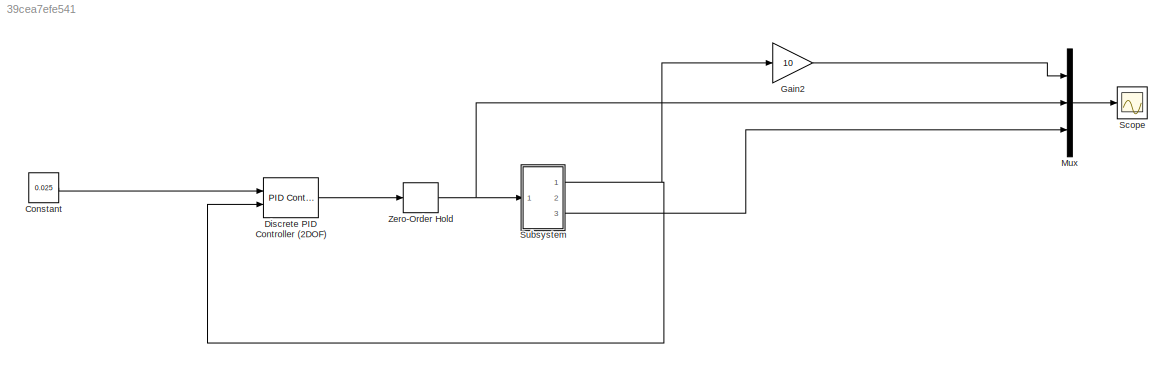
MODEL slx_39cea7efe541
KIND model
CONFIG AbsTol = auto
CONFIG FixedStep = auto
CONFIG MaxStep = auto
CONFIG MinStep = auto
CONFIG RelTol = 1e-3
CONFIG SampleTimeConstraint = Unconstrained
CONFIG Solver = ode45
CONFIG SolverMode = Auto
CONFIG SolverName = ode45
CONFIG StartTime = 0.0
CONFIG StopTime = 10.0
BLOCK [Constant] Constant
  Value = 0.025
BLOCK [Reference] Discrete PID Controller (2DOF)  REF=simulink/Continuous/PID Controller (2DOF)
  AntiWindupMode = none
  Controller = PID
  ControllerParametersSource = internal
  D = -43.8560590713667
  DGainOutDataTypeStr = Inherit: Inherit via internal rule
  DOutDataTypeStr = Inherit: Inherit via internal rule
  DOutMax = []
  DOutMin = []
  DParamDataTypeStr = Inherit: Inherit via internal rule
  DParamMax = []
  DParamMin = []
  DProdOutDataTypeStr = Inherit: Inherit via internal rule
  DifferentiatorICPrevScaledInput = 0
  DifferentiatorOutDataTypeStr = Inherit: Inherit via internal rule
  DifferentiatorOutMax = []
  DifferentiatorOutMin = []
  ExternalReset = none
  FilterContinuousStateAttributes = ''
  FilterMethod = Forward Euler
  FilterOutDataTypeStr = Inherit: Inherit via internal rule
  FilterOutMax = []
  FilterOutMin = []
  FilterRTWStateStorageClass = Auto
  FilterStateMustResolveToSignalObject = off
  Form = Parallel
  I = -115.550707260615
  IGainOutDataTypeStr = Inherit: Inherit via internal rule
  IOutDataTypeStr = Inherit: Inherit via internal rule
  IOutMax = []
  IOutMin = []
  IParamDataTypeStr = Inherit: Inherit via internal rule
  IParamMax = []
  IParamMin = []
  IProdOutDataTypeStr = Inherit: Inherit via internal rule
  IgnoreLimit = off
  InitialConditionForFilter = 0
  InitialConditionForIntegrator = 0
  InitialConditionSource = internal
  IntegratorContinuousStateAttributes = ''
  IntegratorMethod = Forward Euler
  IntegratorOutDataTypeStr = Inherit: Inherit via internal rule
  IntegratorOutMax = []
  IntegratorOutMin = []
  IntegratorRTWStateStorageClass = Auto
  IntegratorStateMustResolveToSignalObject = off
  Kb = 1
  KbOutDataTypeStr = Inherit: Inherit via internal rule
  KbOutMax = []
  KbOutMin = []
  KbParamDataTypeStr = Inherit: Inherit via internal rule
  KbParamMax = []
  KbParamMin = []
  Kt = 1
  KtOutDataTypeStr = Inherit: Inherit via internal rule
  KtOutMax = []
  KtOutMin = []
  KtParamDataTypeStr = Inherit: Inherit via internal rule
  KtParamMax = []
  KtParamMin = []
  LimitOutput = off
  LinearizeAsGain = off
  LockScale = off
  LowerSaturationLimit = -inf
  N = 1764.54351872626
  NGainOutDataTypeStr = Inherit: Inherit via internal rule
  NOutDataTypeStr = Inherit: Inherit via internal rule
  NOutMax = []
  NOutMin = []
  NParamDataTypeStr = Inherit: Inherit via internal rule
  NParamMax = []
  NParamMin = []
  NProdOutDataTypeStr = Inherit: Inherit via internal rule
  P = -151.079915338626
  PGainOutDataTypeStr = Inherit: Inherit via internal rule
  POutDataTypeStr = Inherit: Inherit via internal rule
  POutMax = []
  POutMin = []
  PParamDataTypeStr = Inherit: Inherit via internal rule
  PParamMax = []
  PParamMin = []
  PProdOutDataTypeStr = Inherit: Inherit via internal rule
  Ports = [2, 1]
  RndMeth = Floor
  SampleTime = 0.0010
  SaturateOnIntegerOverflow = off
  SaturationOutDataTypeStr = Inherit: Same as input
  SaturationOutMax = []
  SaturationOutMin = []
  SourceBlock = simulink/Continuous/PID Controller (2DOF)
  SourceType = PID 2dof
  Sum1AccumDataTypeStr = Inherit: Inherit via internal rule
  Sum1OutDataTypeStr = Inherit: Inherit via internal rule
  Sum1OutMax = []
  Sum1OutMin = []
  Sum2AccumDataTypeStr = Inherit: Inherit via internal rule
  Sum2OutDataTypeStr = Inherit: Inherit via internal rule
  Sum2OutMax = []
  Sum2OutMin = []
  Sum3AccumDataTypeStr = Inherit: Inherit via internal rule
  Sum3OutDataTypeStr = Inherit: Inherit via internal rule
  Sum3OutMax = []
  Sum3OutMin = []
  SumAccumDataTypeStr = Inherit: Inherit via internal rule
  SumDAccumDataTypeStr = Inherit: Inherit via internal rule
  SumDOutDataTypeStr = Inherit: Inherit via internal rule
  SumDOutMax = []
  SumDOutMin = []
  SumI1AccumDataTypeStr = Inherit: Inherit via internal rule
  SumI1OutDataTypeStr = Inherit: Inherit via internal rule
  SumI1OutMax = []
  SumI1OutMin = []
  SumI2AccumDataTypeStr = Inherit: Inherit via internal rule
  SumI2OutDataTypeStr = Inherit: Inherit via internal rule
  SumI2OutMax = []
  SumI2OutMin = []
  SumI3AccumDataTypeStr = Inherit: Inherit via internal rule
  SumI3OutDataTypeStr = Inherit: Inherit via internal rule
  SumI3OutMax = []
  SumI3OutMin = []
  SumOutDataTypeStr = Inherit: Inherit via internal rule
  SumOutMax = []
  SumOutMin = []
  TimeDomain = Discrete-time
  TrackingMode = off
  UpperSaturationLimit = inf
  UseFilter = on
  ZeroCross = on
  b = 0.937120165899683
  bGainOutDataTypeStr = Inherit: Inherit via internal rule
  bOutDataTypeStr = Inherit: Inherit via internal rule
  bOutMax = []
  bOutMin = []
  bParamDataTypeStr = Inherit: Inherit via internal rule
  bParamMax = []
  bParamMin = []
  bProdOutDataTypeStr = Inherit: Inherit via internal rule
  c = 0.889774763963859
  cGainOutDataTypeStr = Inherit: Inherit via internal rule
  cOutDataTypeStr = Inherit: Inherit via internal rule
  cOutMax = []
  cOutMin = []
  cParamDataTypeStr = Inherit: Inherit via internal rule
  cParamMax = []
  cParamMin = []
  cProdOutDataTypeStr = Inherit: Inherit via internal rule
BLOCK [Gain] Gain2
  Gain = 10
  OutDataTypeStr = Inherit: Inherit via internal rule
  ParamDataTypeStr = Inherit: Inherit via internal rule
  SaturateOnIntegerOverflow = off
BLOCK [Mux] Mux
  DisplayOption = bar
  Inputs = 3
  Ports = [3, 1]
BLOCK [Scope] Scope
  Floating = off
  NumInputPorts = 1
  Ports = [1]
  TimeRange = 10
  YMax = 500
  YMin = -100
  ZoomMode = yonly
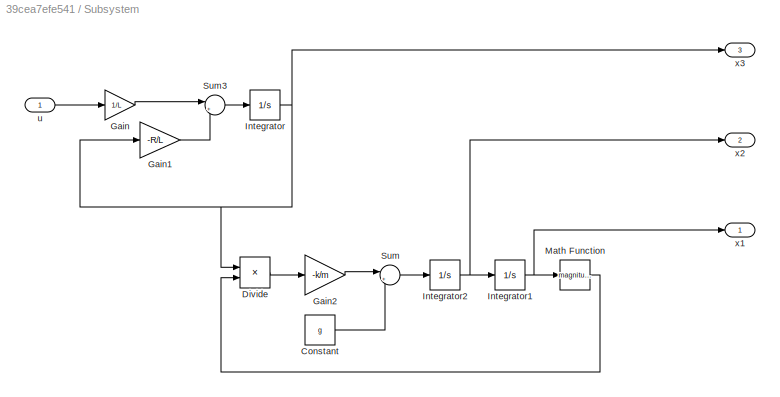
BLOCK [SubSystem] Subsystem
  Ports = [1, 3]
  RequestExecContextInheritance = off
BLOCK [Constant] Subsystem/Constant
  Value = g
BLOCK [Product] Subsystem/Divide
  InputSameDT = off
  Inputs = */
  OutDataTypeStr = Inherit: Inherit via internal rule
  Ports = [2, 1]
  RndMeth = Floor
  SaturateOnIntegerOverflow = off
BLOCK [Gain] Subsystem/Gain
  Gain = 1/L
  OutDataTypeStr = Inherit: Inherit via internal rule
  ParamDataTypeStr = Inherit: Inherit via internal rule
  SaturateOnIntegerOverflow = off
BLOCK [Gain] Subsystem/Gain1
  Gain = -R/L
  OutDataTypeStr = Inherit: Inherit via internal rule
  ParamDataTypeStr = Inherit: Inherit via internal rule
  SaturateOnIntegerOverflow = off
BLOCK [Gain] Subsystem/Gain2
  Gain = -k/m
  OutDataTypeStr = Inherit: Inherit via internal rule
  ParamDataTypeStr = Inherit: Inherit via internal rule
  SaturateOnIntegerOverflow = off
BLOCK [Integrator] Subsystem/Integrator
  InitialCondition = 0.06
  LowerSaturationLimit = 0
  Ports = [1, 1]
  UpperSaturationLimit = 1
BLOCK [Integrator] Subsystem/Integrator1
  InitialCondition = 0.05
  LowerSaturationLimit = 0
  Ports = [1, 1]
  UpperSaturationLimit = 1
BLOCK [Integrator] Subsystem/Integrator2
  Ports = [1, 1]
BLOCK [Math] Subsystem/Math Function
  Operator = magnitude^2
  Ports = [1, 1]
BLOCK [Sum] Subsystem/Sum
  IconShape = round
  InputSameDT = off
  Inputs = |++
  OutDataTypeStr = Inherit: Inherit via internal rule
  Ports = [2, 1]
  SaturateOnIntegerOverflow = off
BLOCK [Sum] Subsystem/Sum3
  IconShape = round
  InputSameDT = off
  Inputs = |++
  OutDataTypeStr = Inherit: Inherit via internal rule
  Ports = [2, 1]
  SaturateOnIntegerOverflow = off
BLOCK [Inport] Subsystem/u
  IconDisplay = Port number
BLOCK [Outport] Subsystem/x1
  IconDisplay = Port number
BLOCK [Outport] Subsystem/x2
  IconDisplay = Port number
  Port = 2
BLOCK [Outport] Subsystem/x3
  IconDisplay = Port number
  Port = 3
BLOCK [ZeroOrderHold] Zero-Order Hold
  SampleTime = 0.001
LINE Constant:1 -> Discrete PID Controller (2DOF):1
LINE Discrete PID Controller (2DOF):1 -> Zero-Order Hold:1
LINE Gain2:1 -> Mux:1
LINE Mux:1 -> Scope:1
LINE Subsystem/Constant:1 -> Subsystem/Sum:2
LINE Subsystem/Divide:1 -> Subsystem/Gain2:1
LINE Subsystem/Gain1:1 -> Subsystem/Sum3:2
LINE Subsystem/Gain2:1 -> Subsystem/Sum:1
LINE Subsystem/Gain:1 -> Subsystem/Sum3:1
NET Subsystem/Integrator1:1 -> Subsystem/Math Function:1, Subsystem/x1:1
NET Subsystem/Integrator2:1 -> Subsystem/Integrator1:1, Subsystem/x2:1
NET Subsystem/Integrator:1 -> Subsystem/Divide:1, Subsystem/Gain1:1, Subsystem/x3:1
LINE Subsystem/Math Function:1 -> Subsystem/Divide:2
LINE Subsystem/Sum3:1 -> Subsystem/Integrator:1
LINE Subsystem/Sum:1 -> Subsystem/Integrator2:1
LINE Subsystem/u:1 -> Subsystem/Gain:1
NET Subsystem:1 -> Discrete PID Controller (2DOF):2, Gain2:1
LINE Subsystem:3 -> Mux:3
NET Zero-Order Hold:1 -> Mux:2, Subsystem:1
note: NET lines group one-source signal fan-out (src -> all destinations, sorted); 1:1 wires keep LINE
